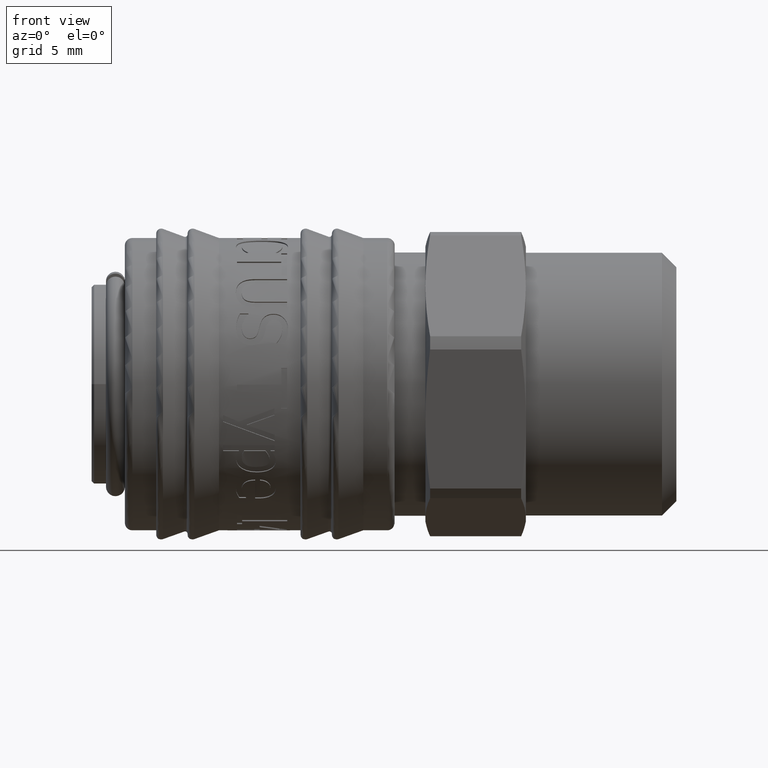
[diagram: clean part render]
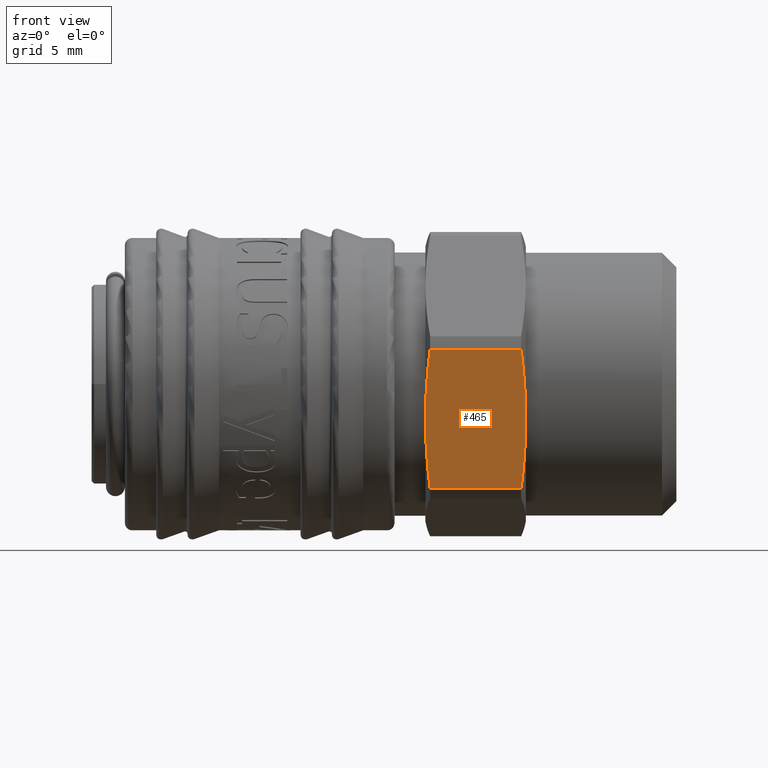
[diagram: same view with one face highlighted and labeled with its STEP entity id]
A machine part, front view. The second image highlights one B-rep face of the part: STEP entity #465.
In plain terms, the highlighted planar face has unit normal (0, 0.9677, 0.2522).
Its self-contained STEP definition (entity closure, byte-faithful):
#382=CARTESIAN_POINT('',(25.600000000000005,-10.644362793580441,-2.774444217972396));
#383=DIRECTION('',(3.145177E-017,0.967669344870949,0.252222201633854));
#384=DIRECTION('',(-1.0,0.0,0.0));
#385=AXIS2_PLACEMENT_3D('',#382,#383,#384);
#386=PLANE('',#385);
#387=CARTESIAN_POINT('',(34.224871130596441,-12.087990667217776,2.76414211451871));
#388=VERTEX_POINT('',#387);
#389=CARTESIAN_POINT('',(34.600000000000009,-10.644362793580441,-2.774444217972396));
#390=VERTEX_POINT('',#389);
#391=CARTESIAN_POINT('',(34.224871130596441,-12.087990667217774,2.764142114518705));
#392=CARTESIAN_POINT('',(34.600000000000009,-11.322991281187733,-0.170835258254368));
#393=CARTESIAN_POINT('',(34.600000000000009,-10.644362793580441,-2.774444217972397));
#401=(BOUNDED_CURVE()B_SPLINE_CURVE(2,(#391,#392,#393),.UNSPECIFIED.,.F.,.U.)B_SPLINE_CURVE_WITH_KNOTS((3,3),(0.0,0.573870031976506),.UNSPECIFIED.)CURVE()GEOMETRIC_REPRESENTATION_ITEM()RATIONAL_B_SPLINE_CURVE((1.0,1.031327476428479,1.0))REPRESENTATION_ITEM(''));
#402=EDGE_CURVE('',#388,#390,#401,.T.);
#403=ORIENTED_EDGE('',*,*,#402,.F.);
#404=CARTESIAN_POINT('',(26.975128869403584,-12.087990667217781,2.764142114518725));
#405=VERTEX_POINT('',#404);
#406=CARTESIAN_POINT('',(26.97512886940358,-12.087990667217777,2.764142114518719));
#407=DIRECTION('',(1.0,0.0,0.0));
#408=VECTOR('',#407,7.249742261192854);
#409=LINE('',#406,#408);
#410=EDGE_CURVE('',#405,#388,#409,.T.);
#411=ORIENTED_EDGE('',*,*,#410,.F.);
#412=CARTESIAN_POINT('',(26.600000000000001,-10.64436279358044,-2.774444217972396));
#413=VERTEX_POINT('',#412);
#414=CARTESIAN_POINT('',(26.600000000000009,-10.64436279358044,-2.774444217972397));
#415=CARTESIAN_POINT('',(26.600000000000005,-11.322991281187731,-0.170835258254378));
#416=CARTESIAN_POINT('',(26.975128869403584,-12.087990667217774,2.764142114518703));
#424=(BOUNDED_CURVE()B_SPLINE_CURVE(2,(#414,#415,#416),.UNSPECIFIED.,.F.,.U.)B_SPLINE_CURVE_WITH_KNOTS((3,3),(0.573870031976506,1.147740063953012),.UNSPECIFIED.)CURVE()GEOMETRIC_REPRESENTATION_ITEM()RATIONAL_B_SPLINE_CURVE((1.0,1.031327476428523,1.0))REPRESENTATION_ITEM(''));
#425=EDGE_CURVE('',#413,#405,#424,.T.);
#426=ORIENTED_EDGE('',*,*,#425,.F.);
#427=CARTESIAN_POINT('',(26.975128869403584,-9.200734919943102,-8.313030550463516));
#428=VERTEX_POINT('',#427);
#429=CARTESIAN_POINT('',(26.975128869403584,-9.200734919943107,-8.313030550463498));
#430=CARTESIAN_POINT('',(26.600000000000009,-9.96573430597315,-5.378053177690417));
#431=CARTESIAN_POINT('',(26.600000000000009,-10.64436279358044,-2.774444217972397));
#439=(BOUNDED_CURVE()B_SPLINE_CURVE(2,(#429,#430,#431),.UNSPECIFIED.,.F.,.U.)B_SPLINE_CURVE_WITH_KNOTS((3,3),(0.0,0.573870031976506),.UNSPECIFIED.)CURVE()GEOMETRIC_REPRESENTATION_ITEM()RATIONAL_B_SPLINE_CURVE((1.0,1.03132747642852,1.0))REPRESENTATION_ITEM(''));
#440=EDGE_CURVE('',#428,#413,#439,.T.);
#441=ORIENTED_EDGE('',*,*,#440,.F.);
#442=CARTESIAN_POINT('',(34.224871130596441,-9.200734919943107,-8.313030550463502));
#443=VERTEX_POINT('',#442);
#444=CARTESIAN_POINT('',(34.224871130596433,-9.200734919943104,-8.313030550463513));
#445=DIRECTION('',(-1.0,0.0,0.0));
#446=VECTOR('',#445,7.249742261192854);
#447=LINE('',#444,#446);
#448=EDGE_CURVE('',#443,#428,#447,.T.);
#449=ORIENTED_EDGE('',*,*,#448,.F.);
#450=CARTESIAN_POINT('',(34.600000000000009,-10.644362793580441,-2.774444217972397));
#451=CARTESIAN_POINT('',(34.600000000000009,-9.965734305973154,-5.378053177690426));
#452=CARTESIAN_POINT('',(34.224871130596441,-9.200734919943107,-8.313030550463498));
#460=(BOUNDED_CURVE()B_SPLINE_CURVE(2,(#450,#451,#452),.UNSPECIFIED.,.F.,.U.)B_SPLINE_CURVE_WITH_KNOTS((3,3),(0.573870031976506,1.147740063953012),.UNSPECIFIED.)CURVE()GEOMETRIC_REPRESENTATION_ITEM()RATIONAL_B_SPLINE_CURVE((1.0,1.031327476428508,1.0))REPRESENTATION_ITEM(''));
#461=EDGE_CURVE('',#390,#443,#460,.T.);
#462=ORIENTED_EDGE('',*,*,#461,.F.);
#463=EDGE_LOOP('',(#403,#411,#426,#441,#449,#462));
#464=FACE_OUTER_BOUND('',#463,.T.);
#465=ADVANCED_FACE('',(#464),#386,.F.);